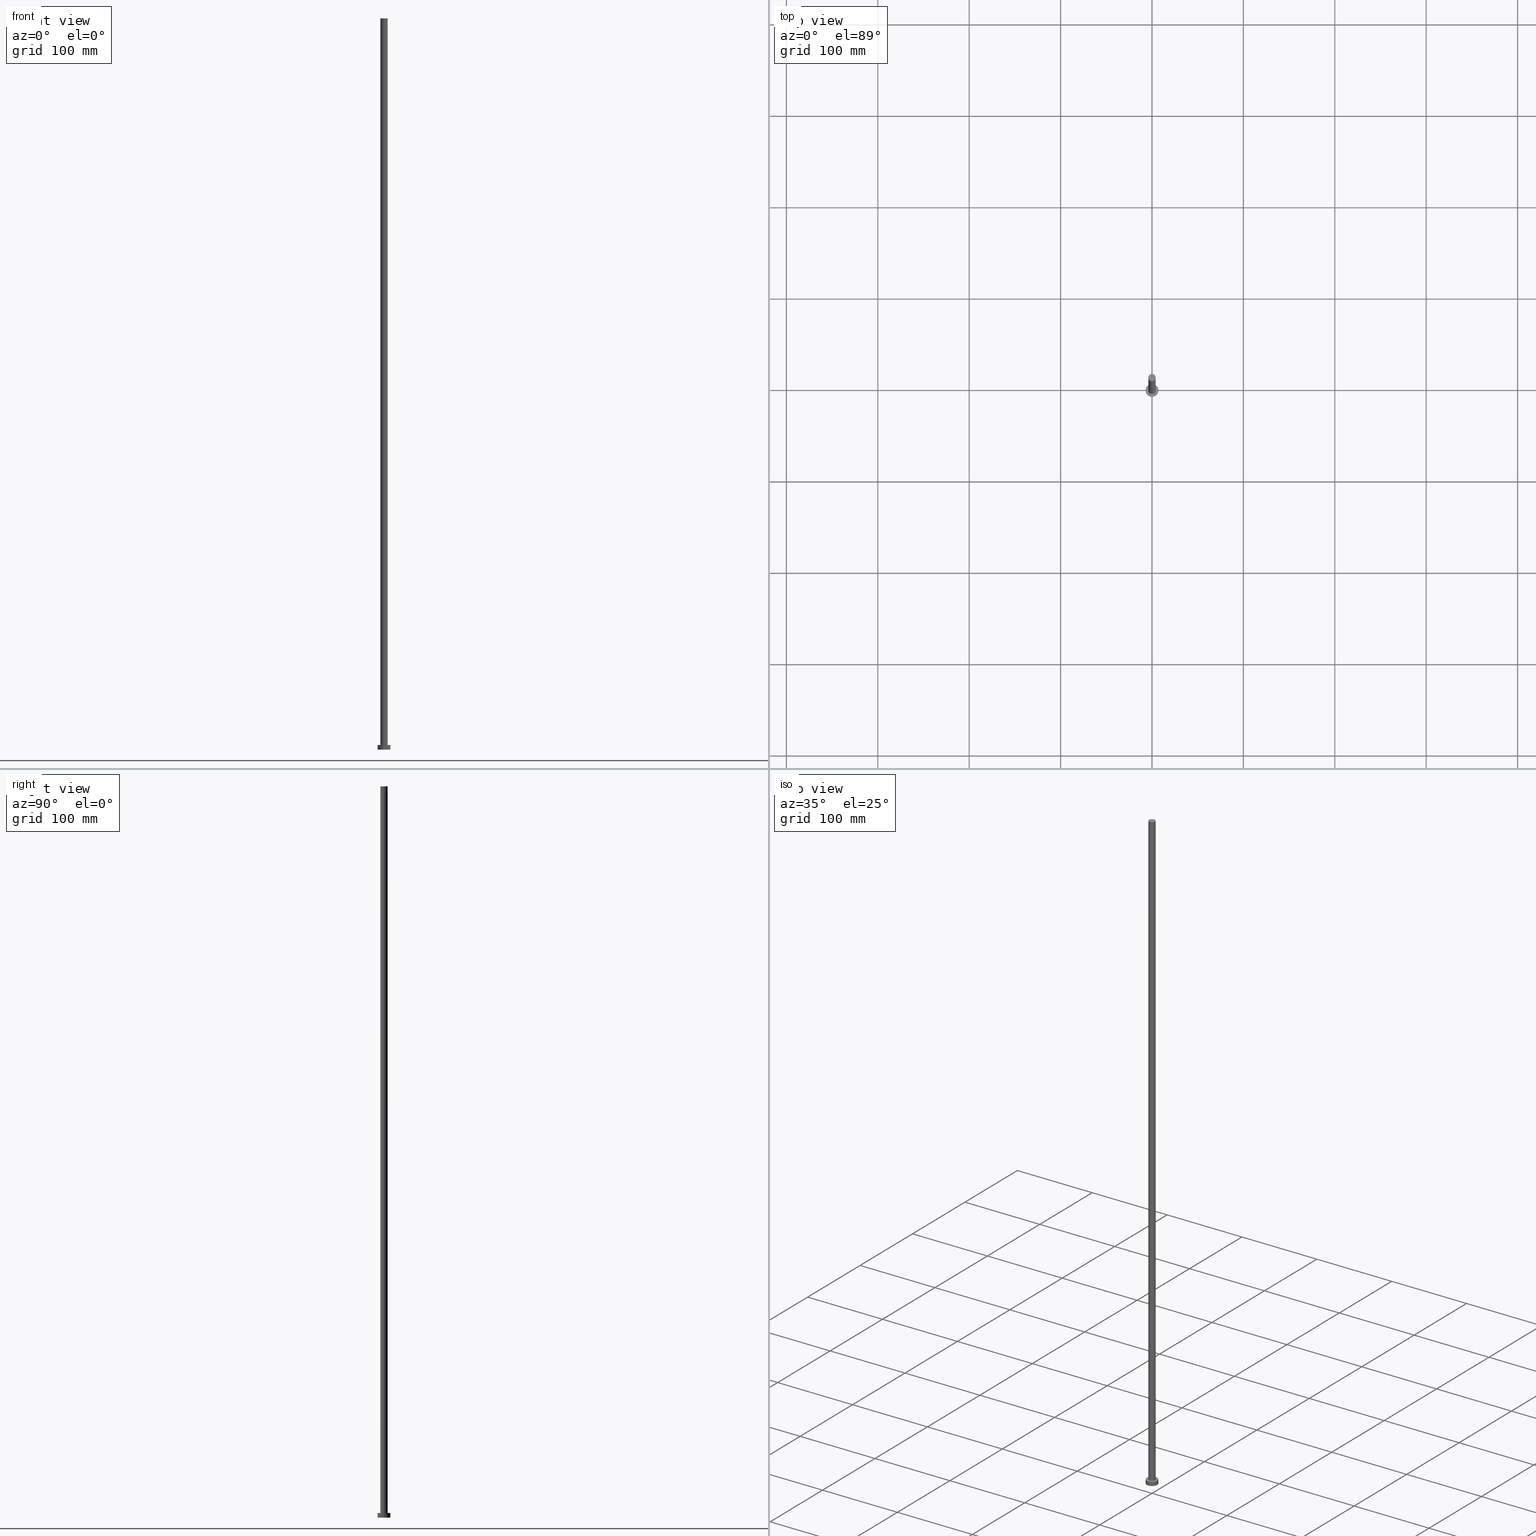
[diagram: canonical four-view strip — front | top / right | iso, engineering-drawing reading convention]
A machine part, canonical four-view strip (front | top / right | iso — engineering-drawing reading convention). The complete STEP part file that produces these views, byte-faithful:
ISO-10303-21;
HEADER;
FILE_DESCRIPTION (( 'STEP AP203' ),
    '1' );
FILE_NAME ('c316.STEP',
    '2023-02-13T10:53:49',
    ( '' ),
    ( '' ),
    'SwSTEP 2.0',
    'SolidWorks 2019',
    '' );
FILE_SCHEMA (( 'CONFIG_CONTROL_DESIGN' ));
ENDSEC;

DATA;
#1 = ADVANCED_FACE ( 'NONE', ( #170 ), #38, .T. ) ;
#2 = DIRECTION ( 'NONE',  ( -0.000000000000000000, -0.000000000000000000, -1.000000000000000000 ) ) ;
#3 = ORIENTED_EDGE ( 'NONE', *, *, #44, .F. ) ;
#4 = EDGE_LOOP ( 'NONE', ( #3, #110 ) ) ;
#5 = DIRECTION ( 'NONE',  ( 0.000000000000000000, 0.000000000000000000, 1.000000000000000000 ) ) ;
#6 = AXIS2_PLACEMENT_3D ( 'NONE', #140, #14, #229 ) ;
#7 = PERSON ( 'NEUR�EN�', 'NEUR�EN�', 'NEUR�EN�', ('NEUR�EN�'), ('NEUR�EN�'), ('NEUR�EN�') ) ;
#8 = DIRECTION ( 'NONE',  ( 0.000000000000000000, 0.000000000000000000, 1.000000000000000000 ) ) ;
#9 = MANIFOLD_SOLID_BREP ( 'P�idat vysunut�m3', #218 ) ;
#10 = LOCAL_TIME ( 11, 53, 49.00000000000000000, #106 ) ;
#11 = CARTESIAN_POINT ( 'NONE',  ( 0.000000000000000000, 0.000000000000000000, 800.0000000000000000 ) ) ;
#12 = CIRCLE ( 'NONE', #165, 7.000000000000000000 ) ;
#13 = EDGE_CURVE ( 'NONE', #105, #253, #107, .T. ) ;
#14 = DIRECTION ( 'NONE',  ( -0.000000000000000000, -0.000000000000000000, -1.000000000000000000 ) ) ;
#15 = PERSON_AND_ORGANIZATION ( #7, #166 ) ;
#16 = DIRECTION ( 'NONE',  ( -0.000000000000000000, -0.000000000000000000, -1.000000000000000000 ) ) ;
#17 = VECTOR ( 'NONE', #125, 1000.000000000000000 ) ;
#18 = CARTESIAN_POINT ( 'NONE',  ( -4.000000000000000000, 0.000000000000000000, 800.0000000000000000 ) ) ;
#19 = CIRCLE ( 'NONE', #51, 7.000000000000000000 ) ;
#20 = EDGE_CURVE ( 'NONE', #55, #112, #111, .T. ) ;
#21 = DIRECTION ( 'NONE',  ( -1.000000000000000000, 0.000000000000000000, 0.000000000000000000 ) ) ;
#22 = PERSON_AND_ORGANIZATION ( #7, #166 ) ;
#23 = PERSON_AND_ORGANIZATION_ROLE ( 'creator' ) ;
#24 = APPROVAL_DATE_TIME ( #169, #36 ) ;
#25 = DIRECTION ( 'NONE',  ( 1.000000000000000000, 0.000000000000000000, 0.000000000000000000 ) ) ;
#26 = CIRCLE ( 'NONE', #86, 4.000000000000000000 ) ;
#27 = CC_DESIGN_DATE_AND_TIME_ASSIGNMENT ( #151, #221, ( #217 ) ) ;
#28 = PERSON_AND_ORGANIZATION_ROLE ( 'classification_officer' ) ;
#29 = PERSON_AND_ORGANIZATION_ROLE ( 'creator' ) ;
#30 =( NAMED_UNIT ( * ) SI_UNIT ( $, .STERADIAN. ) SOLID_ANGLE_UNIT ( ) );
#31 = DIRECTION ( 'NONE',  ( -0.000000000000000000, -0.000000000000000000, -1.000000000000000000 ) ) ;
#32 = CARTESIAN_POINT ( 'NONE',  ( 0.000000000000000000, 0.000000000000000000, 800.0000000000000000 ) ) ;
#33 = SECURITY_CLASSIFICATION ( '', '', #237 ) ;
#34 = ADVANCED_FACE ( 'NONE', ( #176 ), #219, .F. ) ;
#35 = CARTESIAN_POINT ( 'NONE',  ( 4.000000000000000000, 4.898587196589412829E-16, 800.0000000000000000 ) ) ;
#36 = APPROVAL ( #123, 'NEUR�EN�' ) ;
#37 = DATE_TIME_ROLE ( 'classification_date' ) ;
#38 = CYLINDRICAL_SURFACE ( 'NONE', #101, 7.000000000000000000 ) ;
#39 = CARTESIAN_POINT ( 'NONE',  ( -4.000000000000000000, 0.000000000000000000, 5.000000000000000000 ) ) ;
#40 = DIRECTION ( 'NONE',  ( -0.000000000000000000, -0.000000000000000000, -1.000000000000000000 ) ) ;
#41 = ADVANCED_BREP_SHAPE_REPRESENTATION ( 'c316', ( #9, #113 ), #147 ) ;
#42 = DIRECTION ( 'NONE',  ( 0.000000000000000000, 0.000000000000000000, 1.000000000000000000 ) ) ;
#43 = ORIENTED_EDGE ( 'NONE', *, *, #115, .T. ) ;
#44 = EDGE_CURVE ( 'NONE', #204, #253, #134, .T. ) ;
#45 = ORIENTED_EDGE ( 'NONE', *, *, #190, .F. ) ;
#46 = CC_DESIGN_APPROVAL ( #121, ( #33 ) ) ;
#47 = DIRECTION ( 'NONE',  ( 1.000000000000000000, 0.000000000000000000, -0.000000000000000000 ) ) ;
#48 = ADVANCED_FACE ( 'NONE', ( #90 ), #74, .T. ) ;
#49 = APPROVAL_ROLE ( '' ) ;
#50 = DIRECTION ( 'NONE',  ( 1.000000000000000000, 0.000000000000000000, 0.000000000000000000 ) ) ;
#51 = AXIS2_PLACEMENT_3D ( 'NONE', #251, #164, #149 ) ;
#52 = CARTESIAN_POINT ( 'NONE',  ( 7.000000000000000000, 8.572527594031473190E-16, 5.000000000000000000 ) ) ;
#53 = CARTESIAN_POINT ( 'NONE',  ( 0.000000000000000000, 0.000000000000000000, 5.000000000000000000 ) ) ;
#54 = EDGE_LOOP ( 'NONE', ( #152, #232, #43, #206 ) ) ;
#55 = VERTEX_POINT ( 'NONE', #52 ) ;
#56 = CYLINDRICAL_SURFACE ( 'NONE', #227, 4.000000000000000000 ) ;
#57 = PRODUCT_DEFINITION_FORMATION_WITH_SPECIFIED_SOURCE ( 'LIBOVOLN�', '', #143, .NOT_KNOWN. ) ;
#58 =( LENGTH_UNIT ( ) NAMED_UNIT ( * ) SI_UNIT ( .MILLI., .METRE. ) );
#59 = EDGE_LOOP ( 'NONE', ( #226, #120, #131, #99 ) ) ;
#60 = COORDINATED_UNIVERSAL_TIME_OFFSET ( 1, 0, .AHEAD. ) ;
#61 = DIRECTION ( 'NONE',  ( 0.000000000000000000, 0.000000000000000000, 1.000000000000000000 ) ) ;
#62 = EDGE_LOOP ( 'NONE', ( #172, #178 ) ) ;
#63 = DIRECTION ( 'NONE',  ( -1.000000000000000000, 0.000000000000000000, 0.000000000000000000 ) ) ;
#64 = DIRECTION ( 'NONE',  ( 0.000000000000000000, 0.000000000000000000, 1.000000000000000000 ) ) ;
#65 = ADVANCED_FACE ( 'NONE', ( #183, #76 ), #161, .T. ) ;
#66 = CARTESIAN_POINT ( 'NONE',  ( 0.000000000000000000, 0.000000000000000000, 5.000000000000000000 ) ) ;
#67 = DIRECTION ( 'NONE',  ( 1.000000000000000000, 0.000000000000000000, 0.000000000000000000 ) ) ;
#68 = PERSON_AND_ORGANIZATION_ROLE ( 'design_supplier' ) ;
#69 = ORIENTED_EDGE ( 'NONE', *, *, #13, .F. ) ;
#70 = EDGE_LOOP ( 'NONE', ( #69, #45, #177, #197 ) ) ;
#71 = DIRECTION ( 'NONE',  ( -1.000000000000000000, 0.000000000000000000, 0.000000000000000000 ) ) ;
#72 = CARTESIAN_POINT ( 'NONE',  ( 7.000000000000000000, 8.572527594031473190E-16, 5.000000000000000000 ) ) ;
#73 = CARTESIAN_POINT ( 'NONE',  ( 0.000000000000000000, 0.000000000000000000, 800.0000000000000000 ) ) ;
#74 = CYLINDRICAL_SURFACE ( 'NONE', #6, 7.000000000000000000 ) ;
#75 = UNCERTAINTY_MEASURE_WITH_UNIT (LENGTH_MEASURE( 1.000000000000000082E-05 ), #58, 'distance_accuracy_value', 'NONE');
#76 = FACE_OUTER_BOUND ( 'NONE', #62, .T. ) ;
#77 = LOCAL_TIME ( 11, 53, 49.00000000000000000, #100 ) ;
#78 = COORDINATED_UNIVERSAL_TIME_OFFSET ( 1, 0, .AHEAD. ) ;
#79 = EDGE_LOOP ( 'NONE', ( #148, #155 ) ) ;
#80 = VERTEX_POINT ( 'NONE', #186 ) ;
#81 = APPROVAL_STATUS ( 'not_yet_approved' ) ;
#82 = VECTOR ( 'NONE', #31, 1000.000000000000000 ) ;
#83 = APPROVAL_PERSON_ORGANIZATION ( #15, #187, #49 ) ;
#84 = CARTESIAN_POINT ( 'NONE',  ( 0.000000000000000000, 0.000000000000000000, 0.000000000000000000 ) ) ;
#85 = CARTESIAN_POINT ( 'NONE',  ( 7.000000000000000000, 8.572527594031473190E-16, 0.000000000000000000 ) ) ;
#86 = AXIS2_PLACEMENT_3D ( 'NONE', #73, #214, #159 ) ;
#87 = CC_DESIGN_SECURITY_CLASSIFICATION ( #33, ( #57 ) ) ;
#88 = CARTESIAN_POINT ( 'NONE',  ( 0.000000000000000000, 0.000000000000000000, 800.0000000000000000 ) ) ;
#89 = PRODUCT_DEFINITION_SHAPE ( 'NONE', 'NONE',  #217 ) ;
#90 = FACE_OUTER_BOUND ( 'NONE', #209, .T. ) ;
#91 = CALENDAR_DATE ( 2023, 13, 2 ) ;
#92 = DIRECTION ( 'NONE',  ( -0.000000000000000000, -0.000000000000000000, -1.000000000000000000 ) ) ;
#93 = EDGE_CURVE ( 'NONE', #96, #112, #19, .T. ) ;
#94 = CIRCLE ( 'NONE', #191, 7.000000000000000000 ) ;
#95 = CARTESIAN_POINT ( 'NONE',  ( -7.000000000000000000, 0.000000000000000000, 5.000000000000000000 ) ) ;
#96 = VERTEX_POINT ( 'NONE', #235 ) ;
#97 = DIRECTION ( 'NONE',  ( 1.000000000000000000, 0.000000000000000000, -0.000000000000000000 ) ) ;
#98 = APPLICATION_CONTEXT ( 'configuration controlled 3d designs of mechanical parts and assemblies' ) ;
#99 = ORIENTED_EDGE ( 'NONE', *, *, #145, .F. ) ;
#100 = COORDINATED_UNIVERSAL_TIME_OFFSET ( 1, 0, .AHEAD. ) ;
#101 = AXIS2_PLACEMENT_3D ( 'NONE', #241, #104, #71 ) ;
#102 = DIRECTION ( 'NONE',  ( 1.000000000000000000, 0.000000000000000000, 0.000000000000000000 ) ) ;
#103 = CC_DESIGN_DATE_AND_TIME_ASSIGNMENT ( #192, #37, ( #33 ) ) ;
#104 = DIRECTION ( 'NONE',  ( -0.000000000000000000, -0.000000000000000000, -1.000000000000000000 ) ) ;
#105 = VERTEX_POINT ( 'NONE', #35 ) ;
#106 = COORDINATED_UNIVERSAL_TIME_OFFSET ( 1, 0, .AHEAD. ) ;
#107 = LINE ( 'NONE', #240, #146 ) ;
#108 = PERSON_AND_ORGANIZATION ( #7, #166 ) ;
#109 = FACE_OUTER_BOUND ( 'NONE', #54, .T. ) ;
#110 = ORIENTED_EDGE ( 'NONE', *, *, #115, .F. ) ;
#111 = LINE ( 'NONE', #72, #236 ) ;
#112 = VERTEX_POINT ( 'NONE', #85 ) ;
#113 = AXIS2_PLACEMENT_3D ( 'NONE', #84, #64, #246 ) ;
#114 = CARTESIAN_POINT ( 'NONE',  ( 0.000000000000000000, 0.000000000000000000, 5.000000000000000000 ) ) ;
#115 = EDGE_CURVE ( 'NONE', #253, #204, #130, .T. ) ;
#116 = CIRCLE ( 'NONE', #137, 7.000000000000000000 ) ;
#117 = CALENDAR_DATE ( 2023, 13, 2 ) ;
#118 = FACE_OUTER_BOUND ( 'NONE', #70, .T. ) ;
#119 = PRODUCT_RELATED_PRODUCT_CATEGORY ( 'detail', '', ( #143 ) ) ;
#120 = ORIENTED_EDGE ( 'NONE', *, *, #20, .T. ) ;
#121 = APPROVAL ( #81, 'NEUR�EN�' ) ;
#122 = APPROVAL_PERSON_ORGANIZATION ( #127, #36, #208 ) ;
#123 = APPROVAL_STATUS ( 'not_yet_approved' ) ;
#124 = CARTESIAN_POINT ( 'NONE',  ( 0.000000000000000000, 0.000000000000000000, 0.000000000000000000 ) ) ;
#125 = DIRECTION ( 'NONE',  ( -0.000000000000000000, -0.000000000000000000, -1.000000000000000000 ) ) ;
#126 = EDGE_LOOP ( 'NONE', ( #210, #129 ) ) ;
#127 = PERSON_AND_ORGANIZATION ( #7, #166 ) ;
#128 = CARTESIAN_POINT ( 'NONE',  ( 0.000000000000000000, 0.000000000000000000, 800.0000000000000000 ) ) ;
#129 = ORIENTED_EDGE ( 'NONE', *, *, #242, .F. ) ;
#130 = CIRCLE ( 'NONE', #158, 4.000000000000000000 ) ;
#131 = ORIENTED_EDGE ( 'NONE', *, *, #242, .T. ) ;
#132 = EDGE_CURVE ( 'NONE', #80, #55, #12, .T. ) ;
#133 = DATE_AND_TIME ( #181, #234 ) ;
#134 = CIRCLE ( 'NONE', #184, 4.000000000000000000 ) ;
#135 = APPROVAL_STATUS ( 'not_yet_approved' ) ;
#136 = DIRECTION ( 'NONE',  ( 1.000000000000000000, 0.000000000000000000, 0.000000000000000000 ) ) ;
#137 = AXIS2_PLACEMENT_3D ( 'NONE', #194, #5, #67 ) ;
#138 = CARTESIAN_POINT ( 'NONE',  ( 0.000000000000000000, 0.000000000000000000, 5.000000000000000000 ) ) ;
#139 = DIRECTION ( 'NONE',  ( 0.000000000000000000, 0.000000000000000000, 1.000000000000000000 ) ) ;
#140 = CARTESIAN_POINT ( 'NONE',  ( 0.000000000000000000, 0.000000000000000000, 5.000000000000000000 ) ) ;
#141 = EDGE_CURVE ( 'NONE', #105, #225, #26, .T. ) ;
#142 = AXIS2_PLACEMENT_3D ( 'NONE', #53, #139, #97 ) ;
#143 = PRODUCT ( 'c316', 'c316', '', ( #216 ) ) ;
#144 = PERSON_AND_ORGANIZATION ( #7, #166 ) ;
#145 = EDGE_CURVE ( 'NONE', #80, #96, #215, .T. ) ;
#146 = VECTOR ( 'NONE', #2, 1000.000000000000000 ) ;
#147 =( GEOMETRIC_REPRESENTATION_CONTEXT ( 3 ) GLOBAL_UNCERTAINTY_ASSIGNED_CONTEXT ( ( #75 ) ) GLOBAL_UNIT_ASSIGNED_CONTEXT ( ( #58, #200, #30 ) ) REPRESENTATION_CONTEXT ( 'NONE', 'WORKASPACE' ) );
#148 = ORIENTED_EDGE ( 'NONE', *, *, #190, .T. ) ;
#149 = DIRECTION ( 'NONE',  ( 1.000000000000000000, 0.000000000000000000, 0.000000000000000000 ) ) ;
#150 = ORIENTED_EDGE ( 'NONE', *, *, #132, .F. ) ;
#151 = DATE_AND_TIME ( #255, #249 ) ;
#152 = ORIENTED_EDGE ( 'NONE', *, *, #141, .F. ) ;
#153 = CC_DESIGN_PERSON_AND_ORGANIZATION_ASSIGNMENT ( #108, #23, ( #57 ) ) ;
#154 = PERSON_AND_ORGANIZATION ( #7, #166 ) ;
#155 = ORIENTED_EDGE ( 'NONE', *, *, #141, .T. ) ;
#156 = DIRECTION ( 'NONE',  ( 0.000000000000000000, 0.000000000000000000, 1.000000000000000000 ) ) ;
#157 = CC_DESIGN_PERSON_AND_ORGANIZATION_ASSIGNMENT ( #154, #247, ( #143 ) ) ;
#158 = AXIS2_PLACEMENT_3D ( 'NONE', #224, #245, #182 ) ;
#159 = DIRECTION ( 'NONE',  ( 1.000000000000000000, 0.000000000000000000, 0.000000000000000000 ) ) ;
#160 = CC_DESIGN_APPROVAL ( #36, ( #57 ) ) ;
#161 = PLANE ( 'NONE',  #142 ) ;
#162 = APPROVAL_ROLE ( '' ) ;
#163 = LOCAL_TIME ( 11, 53, 49.00000000000000000, #60 ) ;
#164 = DIRECTION ( 'NONE',  ( 0.000000000000000000, 0.000000000000000000, 1.000000000000000000 ) ) ;
#165 = AXIS2_PLACEMENT_3D ( 'NONE', #138, #156, #136 ) ;
#166 = ORGANIZATION ( 'NEUR�EN�', 'NEUR�EN�', '' ) ;
#167 = ORIENTED_EDGE ( 'NONE', *, *, #20, .F. ) ;
#168 = FACE_OUTER_BOUND ( 'NONE', #79, .T. ) ;
#169 = DATE_AND_TIME ( #173, #10 ) ;
#170 = FACE_OUTER_BOUND ( 'NONE', #59, .T. ) ;
#171 = CARTESIAN_POINT ( 'NONE',  ( 4.000000000000000000, 4.898587196589412829E-16, 5.000000000000000000 ) ) ;
#172 = ORIENTED_EDGE ( 'NONE', *, *, #132, .T. ) ;
#173 = CALENDAR_DATE ( 2023, 13, 2 ) ;
#174 = EDGE_CURVE ( 'NONE', #55, #80, #94, .T. ) ;
#175 = DIRECTION ( 'NONE',  ( 1.000000000000000000, 0.000000000000000000, -0.000000000000000000 ) ) ;
#176 = FACE_OUTER_BOUND ( 'NONE', #126, .T. ) ;
#177 = ORIENTED_EDGE ( 'NONE', *, *, #233, .T. ) ;
#178 = ORIENTED_EDGE ( 'NONE', *, *, #174, .T. ) ;
#179 = ORIENTED_EDGE ( 'NONE', *, *, #93, .T. ) ;
#180 = CC_DESIGN_PERSON_AND_ORGANIZATION_ASSIGNMENT ( #22, #28, ( #33 ) ) ;
#181 = CALENDAR_DATE ( 2023, 13, 2 ) ;
#182 = DIRECTION ( 'NONE',  ( 1.000000000000000000, 0.000000000000000000, 0.000000000000000000 ) ) ;
#183 = FACE_BOUND ( 'NONE', #4, .T. ) ;
#184 = AXIS2_PLACEMENT_3D ( 'NONE', #66, #42, #25 ) ;
#185 = AXIS2_PLACEMENT_3D ( 'NONE', #32, #16, #21 ) ;
#186 = CARTESIAN_POINT ( 'NONE',  ( -7.000000000000000000, 0.000000000000000000, 5.000000000000000000 ) ) ;
#187 = APPROVAL ( #135, 'NEUR�EN�' ) ;
#188 = DIRECTION ( 'NONE',  ( 0.000000000000000000, 0.000000000000000000, 1.000000000000000000 ) ) ;
#189 = APPROVAL_DATE_TIME ( #202, #121 ) ;
#190 = EDGE_CURVE ( 'NONE', #225, #105, #231, .T. ) ;
#191 = AXIS2_PLACEMENT_3D ( 'NONE', #114, #198, #50 ) ;
#192 = DATE_AND_TIME ( #91, #163 ) ;
#193 = PERSON_AND_ORGANIZATION ( #7, #166 ) ;
#194 = CARTESIAN_POINT ( 'NONE',  ( 0.000000000000000000, 0.000000000000000000, 0.000000000000000000 ) ) ;
#195 = APPROVAL_PERSON_ORGANIZATION ( #144, #121, #162 ) ;
#196 = ADVANCED_FACE ( 'NONE', ( #118 ), #203, .T. ) ;
#197 = ORIENTED_EDGE ( 'NONE', *, *, #44, .T. ) ;
#198 = DIRECTION ( 'NONE',  ( 0.000000000000000000, 0.000000000000000000, 1.000000000000000000 ) ) ;
#199 = DESIGN_CONTEXT ( 'detailed design', #98, 'design' ) ;
#200 =( NAMED_UNIT ( * ) PLANE_ANGLE_UNIT ( ) SI_UNIT ( $, .RADIAN. ) );
#201 = AXIS2_PLACEMENT_3D ( 'NONE', #11, #188, #102 ) ;
#202 = DATE_AND_TIME ( #117, #77 ) ;
#203 = CYLINDRICAL_SURFACE ( 'NONE', #185, 4.000000000000000000 ) ;
#204 = VERTEX_POINT ( 'NONE', #39 ) ;
#205 = ADVANCED_FACE ( 'NONE', ( #168 ), #238, .T. ) ;
#206 = ORIENTED_EDGE ( 'NONE', *, *, #233, .F. ) ;
#207 = APPLICATION_CONTEXT ( 'configuration controlled 3d designs of mechanical parts and assemblies' ) ;
#208 = APPROVAL_ROLE ( '' ) ;
#209 = EDGE_LOOP ( 'NONE', ( #167, #150, #243, #179 ) ) ;
#210 = ORIENTED_EDGE ( 'NONE', *, *, #93, .F. ) ;
#211 = COORDINATED_UNIVERSAL_TIME_OFFSET ( 1, 0, .AHEAD. ) ;
#212 = APPROVAL_DATE_TIME ( #133, #187 ) ;
#213 = PERSON_AND_ORGANIZATION ( #7, #166 ) ;
#214 = DIRECTION ( 'NONE',  ( 0.000000000000000000, 0.000000000000000000, 1.000000000000000000 ) ) ;
#215 = LINE ( 'NONE', #95, #82 ) ;
#216 = MECHANICAL_CONTEXT ( 'NONE', #207, 'mechanical' ) ;
#217 = PRODUCT_DEFINITION ( 'NEZN�M�', '', #57, #199 ) ;
#218 = CLOSED_SHELL ( 'NONE', ( #230, #1, #48, #65, #34, #196, #205 ) ) ;
#219 = PLANE ( 'NONE',  #239 ) ;
#220 = CARTESIAN_POINT ( 'NONE',  ( -4.000000000000000000, 0.000000000000000000, 800.0000000000000000 ) ) ;
#221 = DATE_TIME_ROLE ( 'creation_date' ) ;
#222 = CC_DESIGN_PERSON_AND_ORGANIZATION_ASSIGNMENT ( #193, #68, ( #57 ) ) ;
#223 = LINE ( 'NONE', #18, #17 ) ;
#224 = CARTESIAN_POINT ( 'NONE',  ( 0.000000000000000000, 0.000000000000000000, 5.000000000000000000 ) ) ;
#225 = VERTEX_POINT ( 'NONE', #220 ) ;
#226 = ORIENTED_EDGE ( 'NONE', *, *, #174, .F. ) ;
#227 = AXIS2_PLACEMENT_3D ( 'NONE', #88, #40, #63 ) ;
#228 = APPLICATION_PROTOCOL_DEFINITION ( 'international standard', 'config_control_design', 1994, #98 ) ;
#229 = DIRECTION ( 'NONE',  ( -1.000000000000000000, 0.000000000000000000, 0.000000000000000000 ) ) ;
#230 = ADVANCED_FACE ( 'NONE', ( #109 ), #56, .T. ) ;
#231 = CIRCLE ( 'NONE', #201, 4.000000000000000000 ) ;
#232 = ORIENTED_EDGE ( 'NONE', *, *, #13, .T. ) ;
#233 = EDGE_CURVE ( 'NONE', #225, #204, #223, .T. ) ;
#234 = LOCAL_TIME ( 11, 53, 49.00000000000000000, #78 ) ;
#235 = CARTESIAN_POINT ( 'NONE',  ( -7.000000000000000000, 0.000000000000000000, 0.000000000000000000 ) ) ;
#236 = VECTOR ( 'NONE', #92, 1000.000000000000000 ) ;
#237 = SECURITY_CLASSIFICATION_LEVEL ( 'unclassified' ) ;
#238 = PLANE ( 'NONE',  #248 ) ;
#239 = AXIS2_PLACEMENT_3D ( 'NONE', #124, #8, #47 ) ;
#240 = CARTESIAN_POINT ( 'NONE',  ( 4.000000000000000000, 4.898587196589412829E-16, 800.0000000000000000 ) ) ;
#241 = CARTESIAN_POINT ( 'NONE',  ( 0.000000000000000000, 0.000000000000000000, 5.000000000000000000 ) ) ;
#242 = EDGE_CURVE ( 'NONE', #112, #96, #116, .T. ) ;
#243 = ORIENTED_EDGE ( 'NONE', *, *, #145, .T. ) ;
#244 = APPLICATION_PROTOCOL_DEFINITION ( 'international standard', 'config_control_design', 1994, #207 ) ;
#245 = DIRECTION ( 'NONE',  ( 0.000000000000000000, 0.000000000000000000, 1.000000000000000000 ) ) ;
#246 = DIRECTION ( 'NONE',  ( 1.000000000000000000, 0.000000000000000000, 0.000000000000000000 ) ) ;
#247 = PERSON_AND_ORGANIZATION_ROLE ( 'design_owner' ) ;
#248 = AXIS2_PLACEMENT_3D ( 'NONE', #128, #61, #175 ) ;
#249 = LOCAL_TIME ( 11, 53, 49.00000000000000000, #211 ) ;
#250 = SHAPE_DEFINITION_REPRESENTATION ( #89, #41 ) ;
#251 = CARTESIAN_POINT ( 'NONE',  ( 0.000000000000000000, 0.000000000000000000, 0.000000000000000000 ) ) ;
#252 = CC_DESIGN_PERSON_AND_ORGANIZATION_ASSIGNMENT ( #213, #29, ( #217 ) ) ;
#253 = VERTEX_POINT ( 'NONE', #171 ) ;
#254 = CC_DESIGN_APPROVAL ( #187, ( #217 ) ) ;
#255 = CALENDAR_DATE ( 2023, 13, 2 ) ;
ENDSEC;
END-ISO-10303-21;
